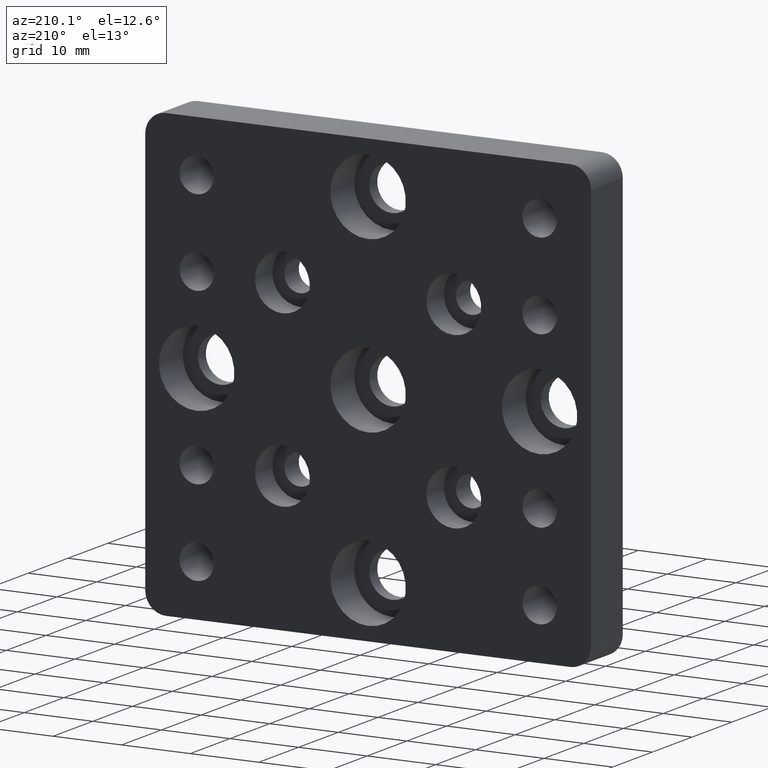
[diagram: clean part render]
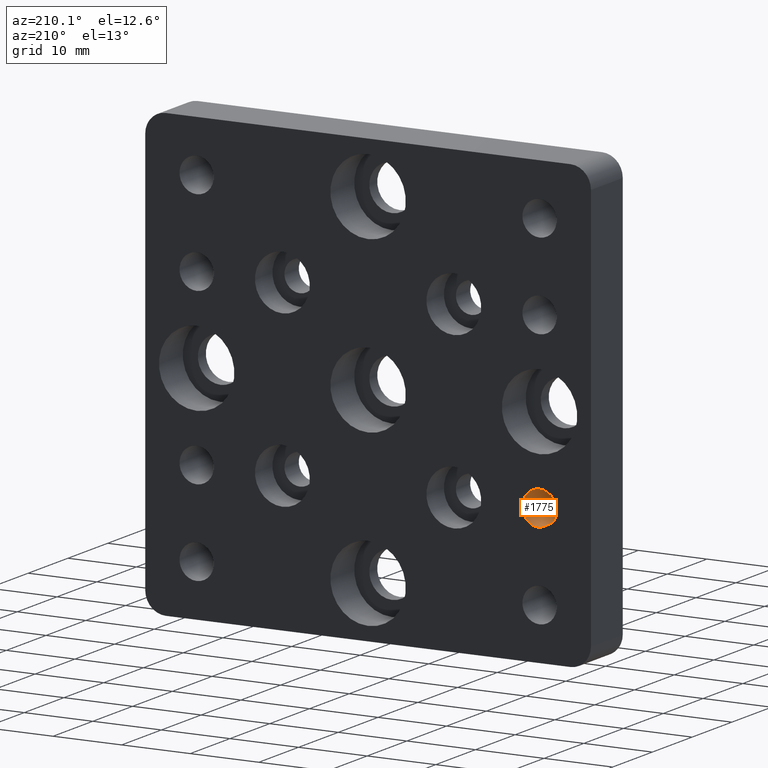
[diagram: same view with one face highlighted and labeled with its STEP entity id]
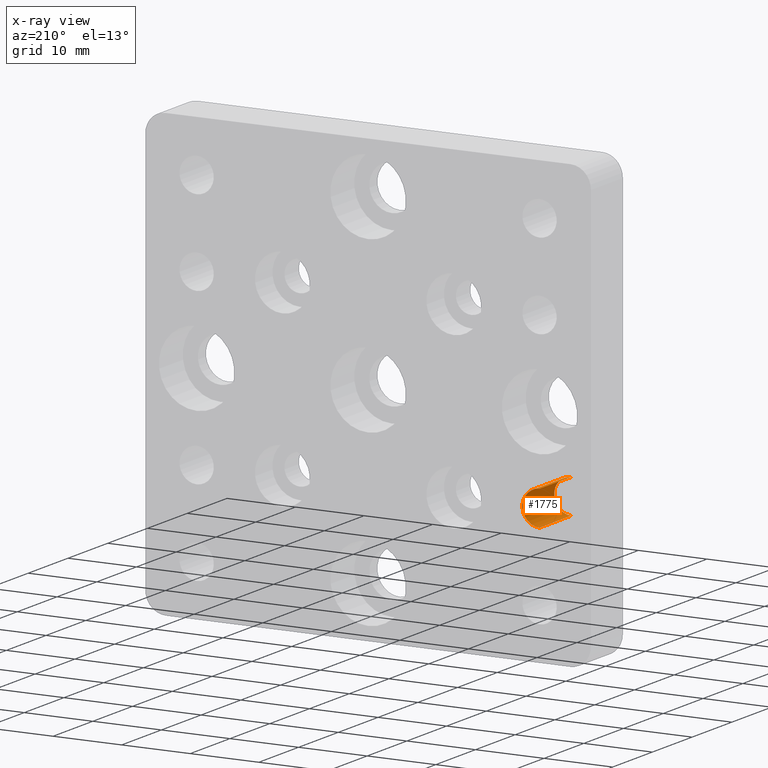
[diagram: x-ray of the same camera — body ghosted, the highlighted face saturated]
A machine part, auxiliary view. The second image highlights one B-rep face of the part: STEP entity #1775.
The next image is the same camera in x-ray: the body ghosted, the highlighted face saturated — about 0% of this face is hidden behind the body in this view.
In plain terms, the highlighted cylindrical surface (edge-blend (fillet) strip) has radius 2.5 mm, axis along (-0, 1, -0).
Its self-contained STEP definition (entity closure, byte-faithful):
#57 = DIRECTION ( 'NONE',  ( -0.0000000000000000000, 1.000000000000000000, -0.0000000000000000000 ) ) ;
#99 = CARTESIAN_POINT ( 'NONE',  ( -25.00000000000000000, 0.0000000000000000000, -10.00000000000000700 ) ) ;
#192 = DIRECTION ( 'NONE',  ( -0.0000000000000000000, 1.000000000000000000, -0.0000000000000000000 ) ) ;
#196 = VERTEX_POINT ( 'NONE', #433 ) ;
#433 = CARTESIAN_POINT ( 'NONE',  ( -25.00000000000000000, 0.0000000000000000000, -15.00000000000000500 ) ) ;
#454 = ORIENTED_EDGE ( 'NONE', *, *, #1726, .F. ) ;
#462 = FACE_OUTER_BOUND ( 'NONE', #2122, .T. ) ;
#541 = VECTOR ( 'NONE', #1637, 1000.000000000000000 ) ;
#627 = DIRECTION ( 'NONE',  ( 0.0000000000000000000, 0.0000000000000000000, 1.000000000000000000 ) ) ;
#638 = AXIS2_PLACEMENT_3D ( 'NONE', #1534, #1175, #1357 ) ;
#711 = AXIS2_PLACEMENT_3D ( 'NONE', #1540, #1720, #627 ) ;
#801 = LINE ( 'NONE', #2051, #948 ) ;
#846 = VERTEX_POINT ( 'NONE', #99 ) ;
#858 = LINE ( 'NONE', #1458, #541 ) ;
#909 = ORIENTED_EDGE ( 'NONE', *, *, #1783, .T. ) ;
#948 = VECTOR ( 'NONE', #57, 1000.000000000000000 ) ;
#997 = VERTEX_POINT ( 'NONE', #1613 ) ;
#1132 = EDGE_CURVE ( 'NONE', #846, #1438, #858, .T. ) ;
#1175 = DIRECTION ( 'NONE',  ( -0.0000000000000000000, 1.000000000000000000, -0.0000000000000000000 ) ) ;
#1357 = DIRECTION ( 'NONE',  ( 0.0000000000000000000, 0.0000000000000000000, 1.000000000000000000 ) ) ;
#1438 = VERTEX_POINT ( 'NONE', #2331 ) ;
#1458 = CARTESIAN_POINT ( 'NONE',  ( -25.00000000000000000, 8.000000000000000000, -10.00000000000001200 ) ) ;
#1519 = CIRCLE ( 'NONE', #711, 2.499999999999988500 ) ;
#1534 = CARTESIAN_POINT ( 'NONE',  ( -25.00000000000000000, 8.000000000000000000, -12.50000000000000500 ) ) ;
#1540 = CARTESIAN_POINT ( 'NONE',  ( -25.00000000000000000, 8.000000000000001800, -12.50000000000000500 ) ) ;
#1541 = CIRCLE ( 'NONE', #1766, 2.499999999999998700 ) ;
#1613 = CARTESIAN_POINT ( 'NONE',  ( -25.00000000000000000, 8.000000000000001800, -14.99999999999999500 ) ) ;
#1617 = CARTESIAN_POINT ( 'NONE',  ( -25.00000000000000000, 0.0000000000000000000, -12.50000000000000500 ) ) ;
#1637 = DIRECTION ( 'NONE',  ( -0.0000000000000000000, 1.000000000000000000, -0.0000000000000000000 ) ) ;
#1720 = DIRECTION ( 'NONE',  ( -0.0000000000000000000, 1.000000000000000000, -0.0000000000000000000 ) ) ;
#1726 = EDGE_CURVE ( 'NONE', #196, #997, #801, .T. ) ;
#1734 = ORIENTED_EDGE ( 'NONE', *, *, #2067, .F. ) ;
#1766 = AXIS2_PLACEMENT_3D ( 'NONE', #1617, #192, #2206 ) ;
#1775 = ADVANCED_FACE ( 'NONE', ( #462 ), #2083, .F. ) ;
#1783 = EDGE_CURVE ( 'NONE', #1438, #997, #1519, .T. ) ;
#2051 = CARTESIAN_POINT ( 'NONE',  ( -25.00000000000000000, 8.000000000000000000, -15.00000000000000000 ) ) ;
#2067 = EDGE_CURVE ( 'NONE', #846, #196, #1541, .T. ) ;
#2083 = CYLINDRICAL_SURFACE ( 'NONE', #638, 2.499999999999993300 ) ;
#2122 = EDGE_LOOP ( 'NONE', ( #454, #1734, #2305, #909 ) ) ;
#2206 = DIRECTION ( 'NONE',  ( 0.0000000000000000000, 0.0000000000000000000, 1.000000000000000000 ) ) ;
#2305 = ORIENTED_EDGE ( 'NONE', *, *, #1132, .T. ) ;
#2331 = CARTESIAN_POINT ( 'NONE',  ( -25.00000000000000000, 8.000000000000001800, -10.00000000000001800 ) ) ;